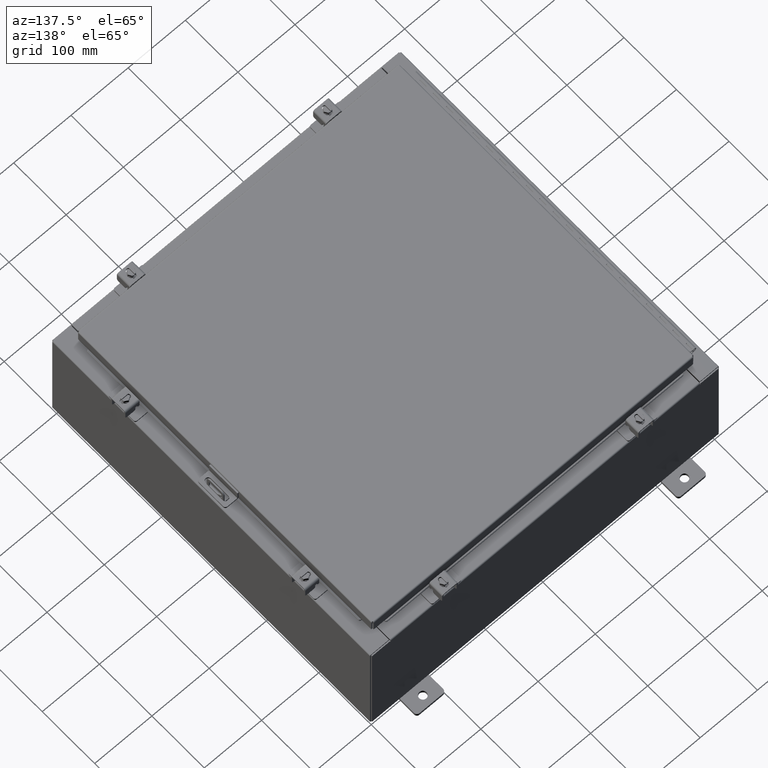
[diagram: clean part render]
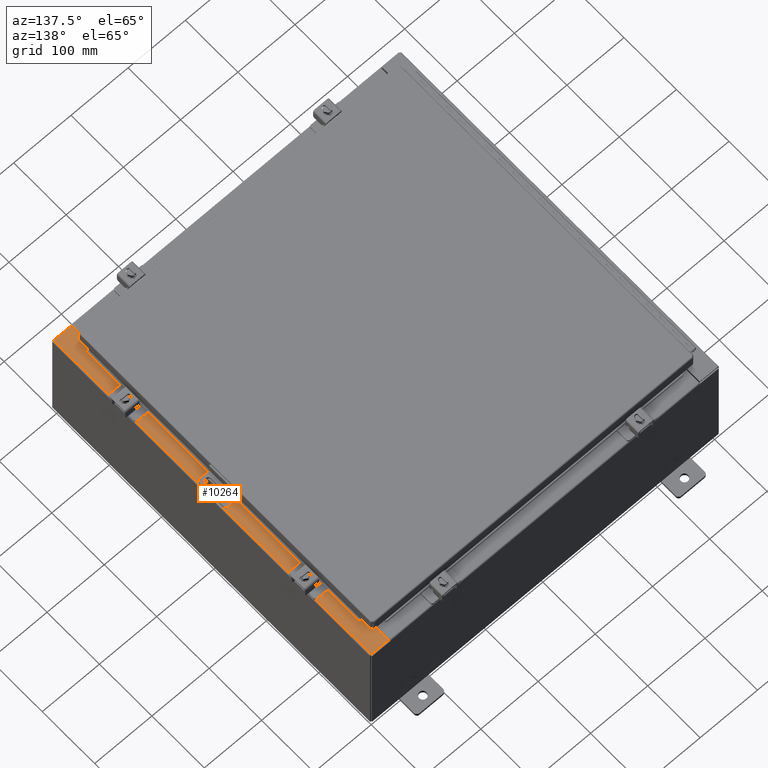
[diagram: same view with one face highlighted and labeled with its STEP entity id]
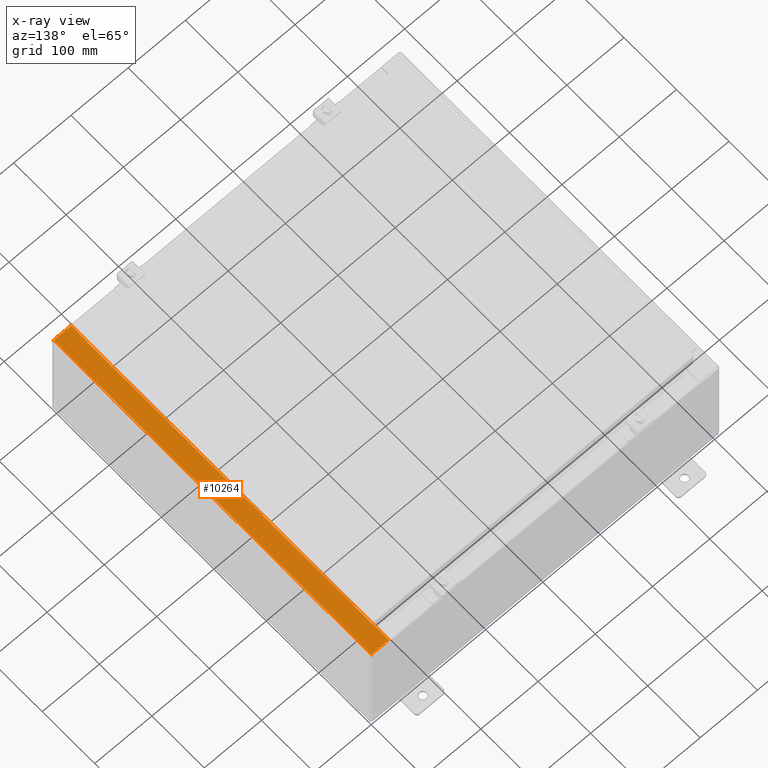
[diagram: x-ray of the same camera — body ghosted, the highlighted face saturated]
A machine part, auxiliary view. The second image highlights one B-rep face of the part: STEP entity #10264.
The next image is the same camera in x-ray: the body ghosted, the highlighted face saturated — about 0% of this face is hidden behind the body in this view.
In plain terms, the highlighted planar face has unit normal (-0, -0, -1).
Its self-contained STEP definition (entity closure, byte-faithful):
#575 = VERTEX_POINT ( 'NONE', #31338 ) ;
#891 = AXIS2_PLACEMENT_3D ( 'NONE', #16882, #1878, #19404 ) ;
#961 = ORIENTED_EDGE ( 'NONE', *, *, #30635, .T. ) ;
#1188 = CARTESIAN_POINT ( 'NONE',  ( 10.69970000000002800, 10.63109999999998600, 7.925300000000008900 ) ) ;
#1209 = VERTEX_POINT ( 'NONE', #27675 ) ;
#1347 = DIRECTION ( 'NONE',  ( -6.241167087353086200E-015, -4.581600452255731000E-017, -1.000000000000000000 ) ) ;
#1403 = CARTESIAN_POINT ( 'NONE',  ( 10.75005000000003000, 10.59374999999998400, 7.925300000000007100 ) ) ;
#1565 = ORIENTED_EDGE ( 'NONE', *, *, #30725, .F. ) ;
#1878 = DIRECTION ( 'NONE',  ( 6.241167087353086200E-015, 4.581600452255730400E-017, 1.000000000000000000 ) ) ;
#2031 = CARTESIAN_POINT ( 'NONE',  ( 10.75005000000003000, 10.61242499999998400, 7.925300000000009800 ) ) ;
#2450 = EDGE_CURVE ( 'NONE', #17774, #26745, #22428, .T. ) ;
#3760 = LINE ( 'NONE', #32381, #23762 ) ;
#4153 = CARTESIAN_POINT ( 'NONE',  ( 10.75005000000003000, -10.59375000000000200, 7.925300000000008900 ) ) ;
#4875 = CARTESIAN_POINT ( 'NONE',  ( 11.91230000000002900, -11.92530000000000400, 7.925300000000000900 ) ) ;
#5112 = ORIENTED_EDGE ( 'NONE', *, *, #25074, .F. ) ;
#5264 = VERTEX_POINT ( 'NONE', #1403 ) ;
#5433 = VERTEX_POINT ( 'NONE', #18208 ) ;
#5778 = LINE ( 'NONE', #18610, #24185 ) ;
#5855 = VERTEX_POINT ( 'NONE', #27041 ) ;
#6429 = AXIS2_PLACEMENT_3D ( 'NONE', #2031, #31798, #12013 ) ;
#6871 = VECTOR ( 'NONE', #31430, 39.37007874015748100 ) ;
#7198 = VECTOR ( 'NONE', #12109, 39.37007874015748100 ) ;
#7367 = DIRECTION ( 'NONE',  ( -1.000000000000000000, 0.0000000000000000000, 6.241167087353087800E-015 ) ) ;
#7560 = LINE ( 'NONE', #7835, #26737 ) ;
#7835 = CARTESIAN_POINT ( 'NONE',  ( 10.71270000000003000, -10.59374999999999800, 7.925300000000009800 ) ) ;
#8406 = ORIENTED_EDGE ( 'NONE', *, *, #18552, .T. ) ;
#8436 = DIRECTION ( 'NONE',  ( -1.000000000000000000, 0.0000000000000000000, 0.0000000000000000000 ) ) ;
#9600 = ORIENTED_EDGE ( 'NONE', *, *, #21979, .F. ) ;
#9739 = AXIS2_PLACEMENT_3D ( 'NONE', #11032, #1347, #23634 ) ;
#10148 = VERTEX_POINT ( 'NONE', #13575 ) ;
#10264 = ADVANCED_FACE ( 'NONE', ( #29687 ), #18247, .F. ) ;
#10334 = DIRECTION ( 'NONE',  ( -9.163200904511462000E-017, -1.000000000000000000, 4.581600452255787700E-017 ) ) ;
#11032 = CARTESIAN_POINT ( 'NONE',  ( 4.972393517345230000E-014, 3.631055805840126200E-016, 7.925300000000075500 ) ) ;
#11079 = DIRECTION ( 'NONE',  ( -4.379057701015054300E-047, -1.000000000000000000, 4.581600452255731000E-017 ) ) ;
#11182 = CIRCLE ( 'NONE', #891, 0.01867499999999949400 ) ;
#11736 = CARTESIAN_POINT ( 'NONE',  ( 10.71270000000003000, 10.59374999999998400, 7.925300000000009800 ) ) ;
#11886 = EDGE_CURVE ( 'NONE', #5264, #5433, #30763, .T. ) ;
#12013 = DIRECTION ( 'NONE',  ( 1.000000000000000000, 0.0000000000000000000, 0.0000000000000000000 ) ) ;
#12109 = DIRECTION ( 'NONE',  ( 1.000000000000000000, 0.0000000000000000000, -6.241167087353087800E-015 ) ) ;
#13575 = CARTESIAN_POINT ( 'NONE',  ( 10.71270000000003000, -10.59375000000000200, 7.925300000000009800 ) ) ;
#14280 = ORIENTED_EDGE ( 'NONE', *, *, #24340, .T. ) ;
#16594 = VERTEX_POINT ( 'NONE', #11736 ) ;
#16882 = CARTESIAN_POINT ( 'NONE',  ( 10.75005000000003000, -10.61242500000000200, 7.925300000000009800 ) ) ;
#17253 = EDGE_CURVE ( 'NONE', #30773, #5855, #26047, .T. ) ;
#17525 = CARTESIAN_POINT ( 'NONE',  ( 11.91230000000002700, -11.92530000000000400, 7.925300000000000900 ) ) ;
#17774 = VERTEX_POINT ( 'NONE', #24152 ) ;
#18208 = CARTESIAN_POINT ( 'NONE',  ( 10.75005000000003000, 10.63109999999998400, 7.925300000000008900 ) ) ;
#18247 = PLANE ( 'NONE',  #9739 ) ;
#18552 = EDGE_CURVE ( 'NONE', #17774, #1209, #31050, .T. ) ;
#18610 = CARTESIAN_POINT ( 'NONE',  ( 10.69970000000002800, 3.631055805840126200E-016, 7.925300000000008900 ) ) ;
#18800 = ORIENTED_EDGE ( 'NONE', *, *, #21230, .T. ) ;
#18964 = CARTESIAN_POINT ( 'NONE',  ( 10.69970000000002800, 3.631055805840126200E-016, 7.925300000000008900 ) ) ;
#19112 = EDGE_LOOP ( 'NONE', ( #19115, #961, #14280, #19717, #8406, #18800, #26613, #28330, #9600, #5112, #26946, #1565 ) ) ;
#19115 = ORIENTED_EDGE ( 'NONE', *, *, #17253, .F. ) ;
#19404 = DIRECTION ( 'NONE',  ( 1.000000000000000000, 0.0000000000000000000, 0.0000000000000000000 ) ) ;
#19717 = ORIENTED_EDGE ( 'NONE', *, *, #2450, .F. ) ;
#20525 = LINE ( 'NONE', #27114, #7198 ) ;
#21088 = CARTESIAN_POINT ( 'NONE',  ( 10.75005000000003000, 10.63109999999998400, 7.925300000000009800 ) ) ;
#21230 = EDGE_CURVE ( 'NONE', #1209, #27045, #5778, .T. ) ;
#21979 = EDGE_CURVE ( 'NONE', #16594, #5264, #3760, .T. ) ;
#21995 = CARTESIAN_POINT ( 'NONE',  ( 10.69970000000002800, -10.63110000000000200, 7.925300000000008900 ) ) ;
#22069 = VECTOR ( 'NONE', #28616, 39.37007874015748100 ) ;
#22428 = LINE ( 'NONE', #17525, #28280 ) ;
#23634 = DIRECTION ( 'NONE',  ( -1.000000000000000000, 0.0000000000000000000, 6.241167087353086200E-015 ) ) ;
#23663 = VECTOR ( 'NONE', #7367, 39.37007874015748100 ) ;
#23762 = VECTOR ( 'NONE', #24979, 39.37007874015748100 ) ;
#24050 = EDGE_CURVE ( 'NONE', #27640, #10148, #28373, .T. ) ;
#24152 = CARTESIAN_POINT ( 'NONE',  ( 11.91230000000002900, 11.92529999999999600, 7.925300000000000000 ) ) ;
#24185 = VECTOR ( 'NONE', #11079, 39.37007874015748100 ) ;
#24340 = EDGE_CURVE ( 'NONE', #575, #26745, #20525, .T. ) ;
#24516 = DIRECTION ( 'NONE',  ( 1.000000000000000000, 0.0000000000000000000, 2.170286390199955400E-014 ) ) ;
#24894 = CARTESIAN_POINT ( 'NONE',  ( 4.972393517345230000E-014, 11.92529999999999600, 7.925300000000075500 ) ) ;
#24979 = DIRECTION ( 'NONE',  ( 1.000000000000000000, 0.0000000000000000000, 0.0000000000000000000 ) ) ;
#25074 = EDGE_CURVE ( 'NONE', #10148, #16594, #7560, .T. ) ;
#26047 = LINE ( 'NONE', #21995, #31870 ) ;
#26613 = ORIENTED_EDGE ( 'NONE', *, *, #32294, .F. ) ;
#26737 = VECTOR ( 'NONE', #30229, 39.37007874015748100 ) ;
#26745 = VERTEX_POINT ( 'NONE', #4875 ) ;
#26946 = ORIENTED_EDGE ( 'NONE', *, *, #24050, .F. ) ;
#27041 = CARTESIAN_POINT ( 'NONE',  ( 10.75005000000003000, -10.63110000000000200, 7.925300000000008900 ) ) ;
#27045 = VERTEX_POINT ( 'NONE', #1188 ) ;
#27114 = CARTESIAN_POINT ( 'NONE',  ( 4.972393517345230000E-014, -11.92530000000000400, 7.925300000000076400 ) ) ;
#27599 = VECTOR ( 'NONE', #8436, 39.37007874015748100 ) ;
#27640 = VERTEX_POINT ( 'NONE', #4153 ) ;
#27654 = LINE ( 'NONE', #18964, #6871 ) ;
#27675 = CARTESIAN_POINT ( 'NONE',  ( 10.69970000000002800, 11.92529999999999600, 7.925300000000008900 ) ) ;
#28280 = VECTOR ( 'NONE', #10334, 39.37007874015748100 ) ;
#28330 = ORIENTED_EDGE ( 'NONE', *, *, #11886, .F. ) ;
#28373 = LINE ( 'NONE', #30824, #27599 ) ;
#28616 = DIRECTION ( 'NONE',  ( -1.000000000000000000, 0.0000000000000000000, -2.170286390199955400E-014 ) ) ;
#28691 = LINE ( 'NONE', #21088, #22069 ) ;
#29572 = CARTESIAN_POINT ( 'NONE',  ( 10.69970000000002800, -10.63110000000000200, 7.925300000000008900 ) ) ;
#29687 = FACE_OUTER_BOUND ( 'NONE', #19112, .T. ) ;
#30229 = DIRECTION ( 'NONE',  ( -0.0000000000000000000, 1.000000000000000000, -0.0000000000000000000 ) ) ;
#30635 = EDGE_CURVE ( 'NONE', #30773, #575, #27654, .T. ) ;
#30725 = EDGE_CURVE ( 'NONE', #5855, #27640, #11182, .T. ) ;
#30763 = CIRCLE ( 'NONE', #6429, 0.01867499999999949400 ) ;
#30773 = VERTEX_POINT ( 'NONE', #29572 ) ;
#30824 = CARTESIAN_POINT ( 'NONE',  ( 10.75005000000003000, -10.59375000000000200, 7.925300000000009800 ) ) ;
#31050 = LINE ( 'NONE', #24894, #23663 ) ;
#31338 = CARTESIAN_POINT ( 'NONE',  ( 10.69970000000002800, -11.92530000000000400, 7.925300000000009800 ) ) ;
#31430 = DIRECTION ( 'NONE',  ( -4.379057701015054300E-047, -1.000000000000000000, 4.581600452255731000E-017 ) ) ;
#31798 = DIRECTION ( 'NONE',  ( 6.241167087353086200E-015, 4.581600452255730400E-017, 1.000000000000000000 ) ) ;
#31870 = VECTOR ( 'NONE', #24516, 39.37007874015748100 ) ;
#32294 = EDGE_CURVE ( 'NONE', #5433, #27045, #28691, .T. ) ;
#32381 = CARTESIAN_POINT ( 'NONE',  ( 10.71270000000003000, 10.59374999999998400, 7.925300000000009800 ) ) ;